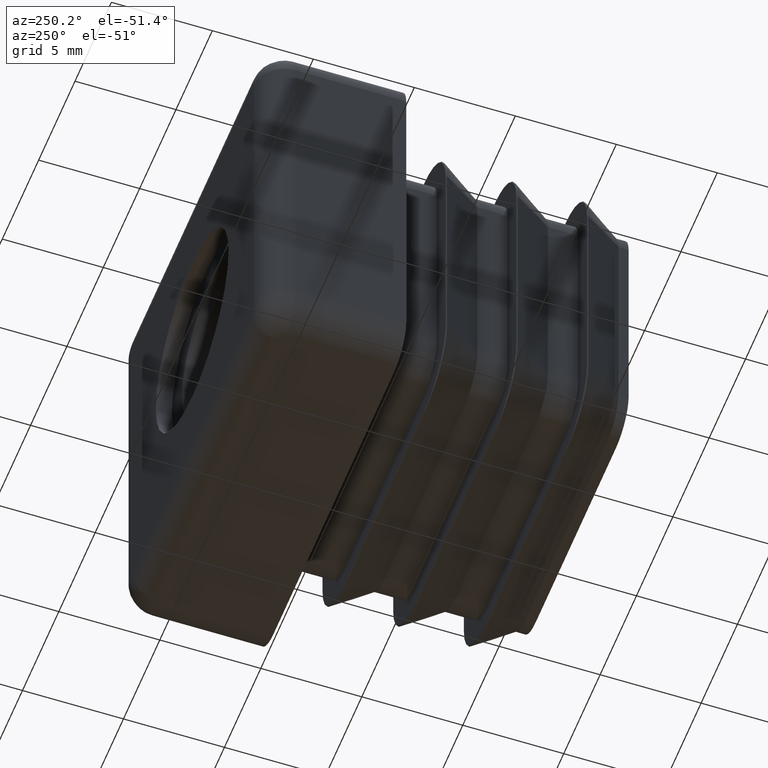
[diagram: clean part render]
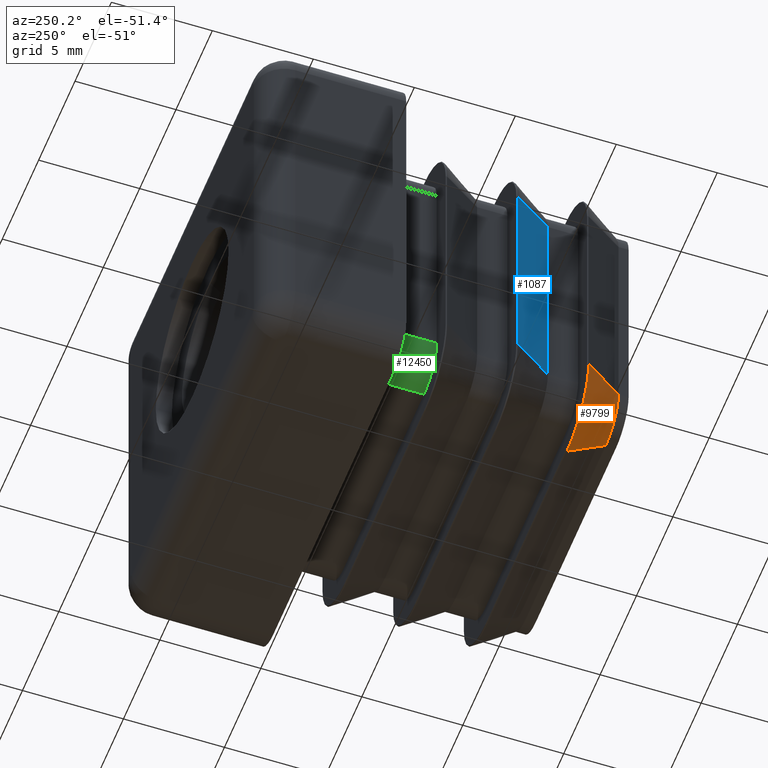
[diagram: same view with three faces highlighted in distinct colors, each labeled with its STEP entity id]
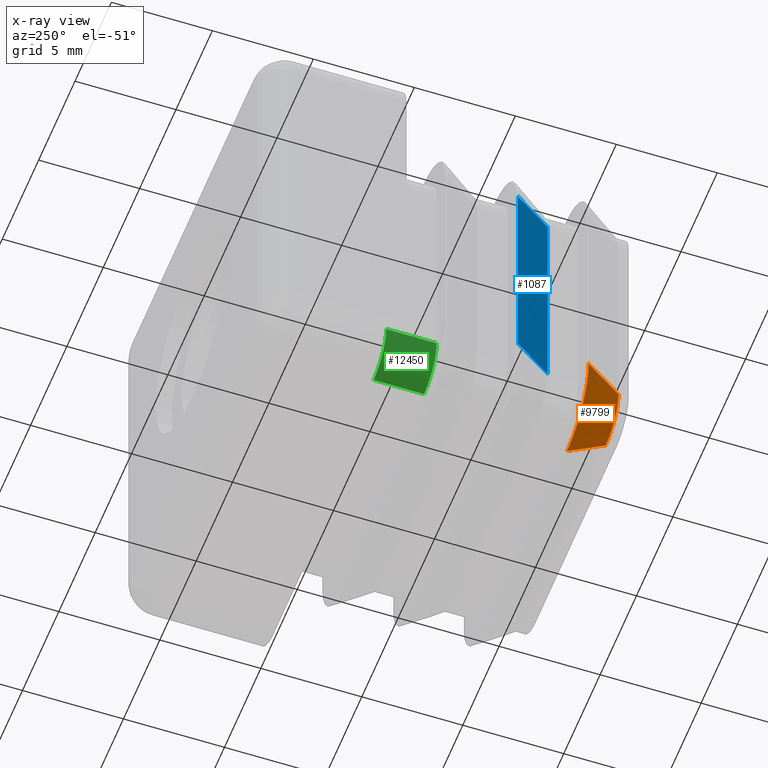
[diagram: x-ray of the same camera — body ghosted, the three highlighted faces saturated]
A machine part, auxiliary view with three faces highlighted in distinct colors.
The next image is the same camera in x-ray (body ghosted, the three faces saturated) — at least one of them is partly hidden behind the body in this view.
Their STEP definitions:

[orange] entity #9799 — the highlighted conical surface has half-angle 32.859 deg.
#545 = LINE ( 'NONE', #10759, #12358 ) ;
#1499 = DIRECTION ( 'NONE',  ( 0.000000000000000000, 1.000000000000000000, 0.000000000000000000 ) ) ;
#1551 = DIRECTION ( 'NONE',  ( -0.5425704442808638728, 0.8400103052896827904, 1.283467755088883214E-16 ) ) ;
#2793 = AXIS2_PLACEMENT_3D ( 'NONE', #15690, #12847, #12012 ) ;
#3258 = VERTEX_POINT ( 'NONE', #18677 ) ;
#3320 = CARTESIAN_POINT ( 'NONE',  ( -5.499999999999991118, -9.577128522214039208, -5.500000000000005329 ) ) ;
#3883 = AXIS2_PLACEMENT_3D ( 'NONE', #10908, #1499, #12637 ) ;
#4390 = CIRCLE ( 'NONE', #18354, 2.992000515264561677 ) ;
#4930 = ORIENTED_EDGE ( 'NONE', *, *, #18801, .T. ) ;
#5408 = VERTEX_POINT ( 'NONE', #7386 ) ;
#6387 = CARTESIAN_POINT ( 'NONE',  ( -8.492000515264553684, -9.577128522214039208, -5.500000000000005329 ) ) ;
#7320 = VECTOR ( 'NONE', #1551, 1000.000000000000227 ) ;
#7386 = CARTESIAN_POINT ( 'NONE',  ( -5.499999999999991118, -9.577128522214039208, -8.492000515264566118 ) ) ;
#7777 = LINE ( 'NONE', #6387, #7320 ) ;
#9686 = ORIENTED_EDGE ( 'NONE', *, *, #19526, .F. ) ;
#9799 = ADVANCED_FACE ( 'NONE', ( #11945 ), #12939, .T. ) ;
#10310 = EDGE_CURVE ( 'NONE', #14939, #3258, #7777, .T. ) ;
#10489 = VERTEX_POINT ( 'NONE', #16287 ) ;
#10759 = CARTESIAN_POINT ( 'NONE',  ( -5.499999999999991118, -9.577128522214039208, -8.492000515264566118 ) ) ;
#10908 = CARTESIAN_POINT ( 'NONE',  ( -5.499999999999991118, -11.50000000000000000, -5.500000000000005329 ) ) ;
#10953 = CARTESIAN_POINT ( 'NONE',  ( -7.249999999999992895, -11.49999999999999289, -5.500000000000005329 ) ) ;
#11945 = FACE_OUTER_BOUND ( 'NONE', #19795, .T. ) ;
#12012 = DIRECTION ( 'NONE',  ( -1.000000000000000000, 0.000000000000000000, 0.000000000000000000 ) ) ;
#12358 = VECTOR ( 'NONE', #16995, 1000.000000000000227 ) ;
#12637 = DIRECTION ( 'NONE',  ( 0.000000000000000000, 0.000000000000000000, 1.000000000000000000 ) ) ;
#12847 = DIRECTION ( 'NONE',  ( -0.000000000000000000, -1.000000000000000000, -0.000000000000000000 ) ) ;
#12939 = CONICAL_SURFACE ( 'NONE', #3883, 1.749999999999998002, 0.5734941112429872145 ) ;
#13732 = CIRCLE ( 'NONE', #2793, 1.749999999999997113 ) ;
#13967 = ORIENTED_EDGE ( 'NONE', *, *, #10310, .T. ) ;
#14066 = DIRECTION ( 'NONE',  ( -0.000000000000000000, -1.000000000000000000, -0.000000000000000000 ) ) ;
#14903 = EDGE_CURVE ( 'NONE', #10489, #5408, #545, .T. ) ;
#14939 = VERTEX_POINT ( 'NONE', #10953 ) ;
#15690 = CARTESIAN_POINT ( 'NONE',  ( -5.499999999999991118, -11.50000000000000000, -5.500000000000005329 ) ) ;
#16287 = CARTESIAN_POINT ( 'NONE',  ( -5.499999999999992895, -11.49999999999999645, -7.250000000000004441 ) ) ;
#16995 = DIRECTION ( 'NONE',  ( -2.994758095207393920E-16, 0.8400103052896827904, -0.5425704442808638728 ) ) ;
#17051 = ORIENTED_EDGE ( 'NONE', *, *, #14903, .F. ) ;
#17299 = DIRECTION ( 'NONE',  ( -1.000000000000000000, 0.000000000000000000, 0.000000000000000000 ) ) ;
#18354 = AXIS2_PLACEMENT_3D ( 'NONE', #3320, #14066, #17299 ) ;
#18677 = CARTESIAN_POINT ( 'NONE',  ( -8.492000515264553684, -9.577128522214039208, -5.500000000000005329 ) ) ;
#18801 = EDGE_CURVE ( 'NONE', #3258, #5408, #4390, .T. ) ;
#19526 = EDGE_CURVE ( 'NONE', #14939, #10489, #13732, .T. ) ;
#19795 = EDGE_LOOP ( 'NONE', ( #4930, #17051, #9686, #13967 ) ) ;

[blue] entity #1087 — the highlighted planar face has unit normal (-0.84, -0.5426, -0).
#1087 = ADVANCED_FACE ( 'NONE', ( #18725 ), #13121, .T. ) ;
#1192 = VERTEX_POINT ( 'NONE', #13833 ) ;
#1728 = ORIENTED_EDGE ( 'NONE', *, *, #10681, .F. ) ;
#2035 = CARTESIAN_POINT ( 'NONE',  ( -8.492000515264521709, -6.077128522214040096, 5.499999999999994671 ) ) ;
#2396 = VECTOR ( 'NONE', #14176, 1000.000000000000000 ) ;
#2643 = CARTESIAN_POINT ( 'NONE',  ( -8.492000515264516380, -6.077128522214040096, -5.500000000000005329 ) ) ;
#3328 = LINE ( 'NONE', #2643, #15682 ) ;
#3686 = DIRECTION ( 'NONE',  ( -0.8400103052896973344, -0.5425704442808413352, -2.649428357542696053E-16 ) ) ;
#3762 = EDGE_CURVE ( 'NONE', #12747, #1192, #14963, .T. ) ;
#4410 = VECTOR ( 'NONE', #8265, 1000.000000000000000 ) ;
#6117 = VECTOR ( 'NONE', #18935, 1000.000000000000114 ) ;
#6492 = CARTESIAN_POINT ( 'NONE',  ( -7.250000000000029310, -8.000000000000000000, 5.499999999999994671 ) ) ;
#7154 = DIRECTION ( 'NONE',  ( 0.5425704442808413352, -0.8400103052896973344, 0.000000000000000000 ) ) ;
#8174 = CARTESIAN_POINT ( 'NONE',  ( -8.492000515264519933, -6.077128522214040096, 5.499999999999994671 ) ) ;
#8265 = DIRECTION ( 'NONE',  ( 3.154042683594195121E-16, -0.000000000000000000, -1.000000000000000000 ) ) ;
#8550 = CARTESIAN_POINT ( 'NONE',  ( -7.249999999999996447, -8.000000000000049738, 5.499999999999994671 ) ) ;
#8914 = VERTEX_POINT ( 'NONE', #12544 ) ;
#10054 = LINE ( 'NONE', #15996, #4410 ) ;
#10681 = EDGE_CURVE ( 'NONE', #1192, #8914, #3328, .T. ) ;
#11403 = ORIENTED_EDGE ( 'NONE', *, *, #19913, .T. ) ;
#11713 = AXIS2_PLACEMENT_3D ( 'NONE', #8174, #3686, #7154 ) ;
#11940 = EDGE_LOOP ( 'NONE', ( #14006, #1728, #18293, #11403 ) ) ;
#12544 = CARTESIAN_POINT ( 'NONE',  ( -8.492000515264516380, -6.077128522214040096, -5.500000000000005329 ) ) ;
#12747 = VERTEX_POINT ( 'NONE', #8550 ) ;
#13121 = PLANE ( 'NONE',  #11713 ) ;
#13833 = CARTESIAN_POINT ( 'NONE',  ( -7.249999999999992895, -8.000000000000051514, -5.500000000000005329 ) ) ;
#14006 = ORIENTED_EDGE ( 'NONE', *, *, #17893, .T. ) ;
#14097 = CARTESIAN_POINT ( 'NONE',  ( -8.492000515264521709, -6.077128522214040096, 5.499999999999994671 ) ) ;
#14176 = DIRECTION ( 'NONE',  ( 3.154042683594195121E-16, -0.000000000000000000, -1.000000000000000000 ) ) ;
#14963 = LINE ( 'NONE', #6492, #2396 ) ;
#15191 = DIRECTION ( 'NONE',  ( -0.5425704442808414463, 0.8400103052896973344, 1.283467755088829966E-16 ) ) ;
#15587 = VERTEX_POINT ( 'NONE', #2035 ) ;
#15682 = VECTOR ( 'NONE', #15191, 1000.000000000000114 ) ;
#15996 = CARTESIAN_POINT ( 'NONE',  ( -8.492000515264519933, -6.077128522214040096, 5.499999999999994671 ) ) ;
#16685 = LINE ( 'NONE', #14097, #6117 ) ;
#17893 = EDGE_CURVE ( 'NONE', #15587, #8914, #10054, .T. ) ;
#18293 = ORIENTED_EDGE ( 'NONE', *, *, #3762, .F. ) ;
#18725 = FACE_OUTER_BOUND ( 'NONE', #11940, .T. ) ;
#18935 = DIRECTION ( 'NONE',  ( -0.5425704442808414463, 0.8400103052896973344, 2.994758095207270168E-16 ) ) ;
#19913 = EDGE_CURVE ( 'NONE', #12747, #15587, #16685, .T. ) ;

[green] entity #12450 — the highlighted cylindrical surface (partial cylindrical patch) has radius 1.75 mm, axis along (0, 1, -0).
#49 = AXIS2_PLACEMENT_3D ( 'NONE', #11604, #11465, #10152 ) ;
#289 = EDGE_LOOP ( 'NONE', ( #9127, #5077, #9624, #14362 ) ) ;
#811 = EDGE_CURVE ( 'NONE', #7148, #8703, #7631, .T. ) ;
#980 = LINE ( 'NONE', #15495, #14765 ) ;
#1170 = EDGE_CURVE ( 'NONE', #8703, #20006, #980, .T. ) ;
#1344 = CARTESIAN_POINT ( 'NONE',  ( -5.499999999999992895, -12.00000000000000000, -7.250000000000004441 ) ) ;
#2323 = CARTESIAN_POINT ( 'NONE',  ( -5.499999999999992895, 0.000000000000000000, -7.250000000000004441 ) ) ;
#3294 = VERTEX_POINT ( 'NONE', #11472 ) ;
#3778 = CYLINDRICAL_SURFACE ( 'NONE', #4305, 1.749999999999999778 ) ;
#4305 = AXIS2_PLACEMENT_3D ( 'NONE', #19088, #9769, #6712 ) ;
#5077 = ORIENTED_EDGE ( 'NONE', *, *, #1170, .F. ) ;
#5807 = FACE_OUTER_BOUND ( 'NONE', #289, .T. ) ;
#6712 = DIRECTION ( 'NONE',  ( 0.000000000000000000, 0.000000000000000000, 1.000000000000000000 ) ) ;
#7148 = VERTEX_POINT ( 'NONE', #2323 ) ;
#7631 = CIRCLE ( 'NONE', #10253, 1.749999999999999778 ) ;
#8568 = DIRECTION ( 'NONE',  ( 0.000000000000000000, 1.000000000000000000, 0.000000000000000000 ) ) ;
#8703 = VERTEX_POINT ( 'NONE', #14784 ) ;
#8945 = VECTOR ( 'NONE', #12349, 1000.000000000000000 ) ;
#9127 = ORIENTED_EDGE ( 'NONE', *, *, #9422, .F. ) ;
#9422 = EDGE_CURVE ( 'NONE', #20006, #3294, #18156, .T. ) ;
#9624 = ORIENTED_EDGE ( 'NONE', *, *, #811, .F. ) ;
#9769 = DIRECTION ( 'NONE',  ( 0.000000000000000000, 1.000000000000000000, -0.000000000000000000 ) ) ;
#10144 = LINE ( 'NONE', #1344, #8945 ) ;
#10152 = DIRECTION ( 'NONE',  ( -1.000000000000000000, 0.000000000000000000, 0.000000000000000000 ) ) ;
#10253 = AXIS2_PLACEMENT_3D ( 'NONE', #11420, #8568, #19388 ) ;
#11374 = CARTESIAN_POINT ( 'NONE',  ( -7.249999999999992895, -2.500000000000000444, -5.500000000000005329 ) ) ;
#11420 = CARTESIAN_POINT ( 'NONE',  ( -5.499999999999992895, 0.000000000000000000, -5.500000000000005329 ) ) ;
#11465 = DIRECTION ( 'NONE',  ( -0.000000000000000000, -1.000000000000000000, -0.000000000000000000 ) ) ;
#11472 = CARTESIAN_POINT ( 'NONE',  ( -5.499999999999992895, -2.499999999999998668, -7.250000000000004441 ) ) ;
#11604 = CARTESIAN_POINT ( 'NONE',  ( -5.499999999999991118, -2.500000000000000000, -5.500000000000005329 ) ) ;
#12349 = DIRECTION ( 'NONE',  ( 0.000000000000000000, 1.000000000000000000, -0.000000000000000000 ) ) ;
#12450 = ADVANCED_FACE ( 'NONE', ( #5807 ), #3778, .T. ) ;
#13776 = EDGE_CURVE ( 'NONE', #3294, #7148, #10144, .T. ) ;
#14362 = ORIENTED_EDGE ( 'NONE', *, *, #13776, .F. ) ;
#14765 = VECTOR ( 'NONE', #17018, 1000.000000000000000 ) ;
#14784 = CARTESIAN_POINT ( 'NONE',  ( -7.249999999999992895, 0.000000000000000000, -5.500000000000005329 ) ) ;
#15495 = CARTESIAN_POINT ( 'NONE',  ( -7.249999999999992895, -12.00000000000000000, -5.500000000000005329 ) ) ;
#17018 = DIRECTION ( 'NONE',  ( -0.000000000000000000, -1.000000000000000000, -0.000000000000000000 ) ) ;
#18156 = CIRCLE ( 'NONE', #49, 1.749999999999997113 ) ;
#19088 = CARTESIAN_POINT ( 'NONE',  ( -5.499999999999992895, -12.00000000000000000, -5.500000000000005329 ) ) ;
#19388 = DIRECTION ( 'NONE',  ( 0.000000000000000000, 0.000000000000000000, 1.000000000000000000 ) ) ;
#20006 = VERTEX_POINT ( 'NONE', #11374 ) ;